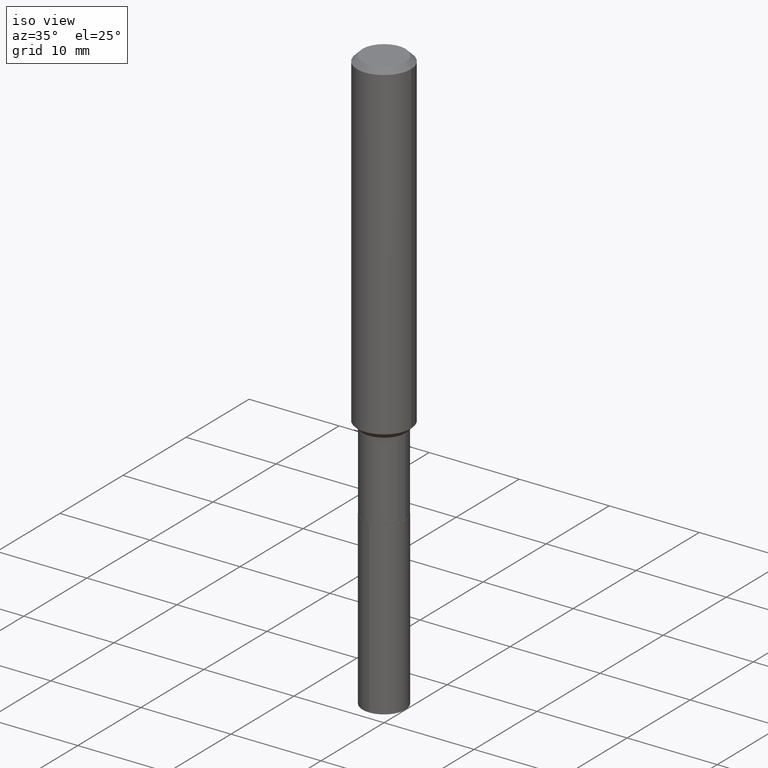
[diagram: clean part render]
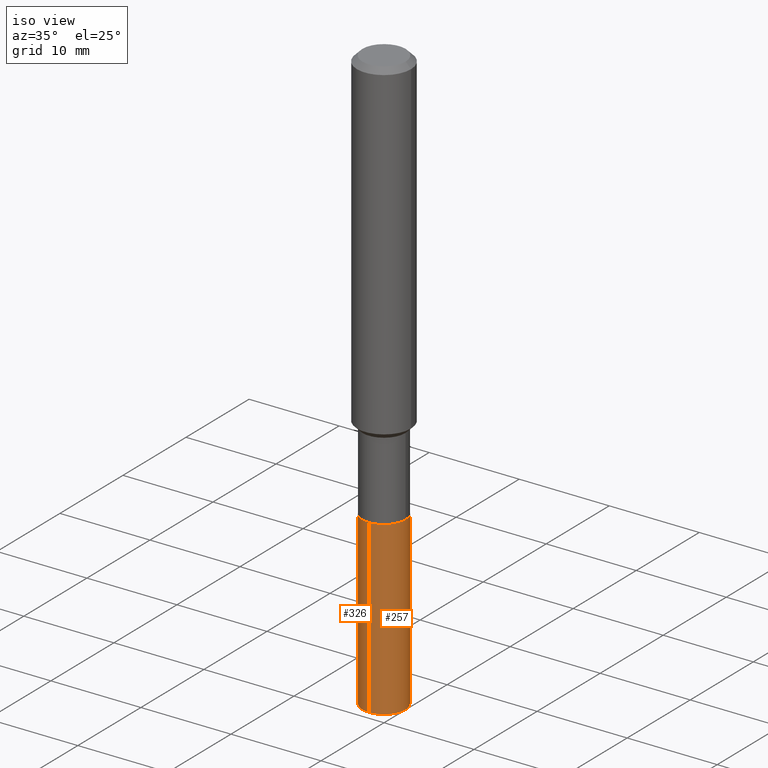
[diagram: same view with one multi-face feature highlighted, each face labeled with its STEP entity id]
A machine part, iso view. The highlighted faces form ONE feature: a constant-radius fillet chain: 2 tangent blend faces with common blend radius 2.3813 mm. The faces share edges in the B-rep.
Their STEP definitions:
[1] entity #326 (Cylinder):
#9 = AXIS2_PLACEMENT_3D ( 'NONE', #240, #272, #46 ) ;
#15 = LINE ( 'NONE', #98, #171 ) ;
#17 = CYLINDRICAL_SURFACE ( 'NONE', #235, 0.09375000000000001388 ) ;
#27 = DIRECTION ( 'NONE',  ( -6.982962677686265922E-15, -1.000000000000000000, 2.913971193241880372E-15 ) ) ;
#42 = CARTESIAN_POINT ( 'NONE',  ( 6.661338147751565401E-16, 0.09374999999999368561, -1.811000000000000165 ) ) ;
#46 = DIRECTION ( 'NONE',  ( -6.982962677686265922E-15, -1.000000000000000000, 5.827942386483760744E-15 ) ) ;
#52 = EDGE_LOOP ( 'NONE', ( #402, #144, #398, #354 ) ) ;
#73 = CARTESIAN_POINT ( 'NONE',  ( -6.546527510330432293E-16, -0.09375000000000632827, -1.810999999999999721 ) ) ;
#98 = CARTESIAN_POINT ( 'NONE',  ( -6.546527510330432293E-16, -0.09375000000000632827, -1.810999999999999721 ) ) ;
#103 = VERTEX_POINT ( 'NONE', #340 ) ;
#110 = CIRCLE ( 'NONE', #365, 0.09375000000000001388 ) ;
#119 = CIRCLE ( 'NONE', #9, 0.09375000000000001388 ) ;
#132 = CARTESIAN_POINT ( 'NONE',  ( 6.661338147751381005E-16, 0.09374999999999368561, -1.811000000000000165 ) ) ;
#135 = VERTEX_POINT ( 'NONE', #305 ) ;
#144 = ORIENTED_EDGE ( 'NONE', *, *, #443, .T. ) ;
#147 = CARTESIAN_POINT ( 'NONE',  ( 4.428744008001282238E-29, -6.323072704644935995E-15, -1.810999999999999943 ) ) ;
#171 = VECTOR ( 'NONE', #247, 39.37007874015748143 ) ;
#176 = EDGE_CURVE ( 'NONE', #103, #278, #15, .T. ) ;
#210 = LINE ( 'NONE', #132, #318 ) ;
#213 = DIRECTION ( 'NONE',  ( -2.445866323305288275E-29, 3.490912071701818882E-15, 1.000000000000000000 ) ) ;
#235 = AXIS2_PLACEMENT_3D ( 'NONE', #355, #357, #350 ) ;
#240 = CARTESIAN_POINT ( 'NONE',  ( 6.264295491593390154E-29, -8.942900604169135523E-15, -2.561470892911099195 ) ) ;
#247 = DIRECTION ( 'NONE',  ( -2.445866323305287994E-29, 3.490912071701818882E-15, 1.000000000000000000 ) ) ;
#272 = DIRECTION ( 'NONE',  ( -2.445866323305288275E-29, 3.490912071701818882E-15, 1.000000000000000000 ) ) ;
#278 = VERTEX_POINT ( 'NONE', #73 ) ;
#305 = CARTESIAN_POINT ( 'NONE',  ( 6.661338147751568359E-16, 0.09374999999999111822, -2.561470892911100083 ) ) ;
#313 = EDGE_CURVE ( 'NONE', #135, #325, #210, .T. ) ;
#317 = FACE_OUTER_BOUND ( 'NONE', #52, .T. ) ;
#318 = VECTOR ( 'NONE', #323, 39.37007874015748143 ) ;
#323 = DIRECTION ( 'NONE',  ( -2.445866323305287994E-29, 3.490912071701818882E-15, 1.000000000000000000 ) ) ;
#325 = VERTEX_POINT ( 'NONE', #42 ) ;
#326 = ADVANCED_FACE ( 'NONE', ( #317 ), #17, .T. ) ;
#340 = CARTESIAN_POINT ( 'NONE',  ( -6.546527510330251841E-16, -0.09375000000000899281, -2.561470892911098751 ) ) ;
#350 = DIRECTION ( 'NONE',  ( -6.982962677686265922E-15, -1.000000000000000000, 2.913971193241880372E-15 ) ) ;
#354 = ORIENTED_EDGE ( 'NONE', *, *, #490, .F. ) ;
#355 = CARTESIAN_POINT ( 'NONE',  ( 4.428744008001282238E-29, -6.323072704644935995E-15, -1.810999999999999943 ) ) ;
#357 = DIRECTION ( 'NONE',  ( -2.445866323305288275E-29, 3.490912071701818882E-15, 1.000000000000000000 ) ) ;
#365 = AXIS2_PLACEMENT_3D ( 'NONE', #147, #213, #27 ) ;
#398 = ORIENTED_EDGE ( 'NONE', *, *, #176, .T. ) ;
#402 = ORIENTED_EDGE ( 'NONE', *, *, #313, .F. ) ;
#443 = EDGE_CURVE ( 'NONE', #135, #103, #119, .T. ) ;
#490 = EDGE_CURVE ( 'NONE', #325, #278, #110, .T. ) ;
[2] entity #257 (Cylinder):
#2 = AXIS2_PLACEMENT_3D ( 'NONE', #55, #459, #127 ) ;
#15 = LINE ( 'NONE', #98, #171 ) ;
#42 = CARTESIAN_POINT ( 'NONE',  ( 6.661338147751565401E-16, 0.09374999999999368561, -1.811000000000000165 ) ) ;
#55 = CARTESIAN_POINT ( 'NONE',  ( 6.264295491593390154E-29, -8.942900604169135523E-15, -2.561470892911099195 ) ) ;
#56 = CARTESIAN_POINT ( 'NONE',  ( 4.428744008001282238E-29, -6.323072704644935995E-15, -1.810999999999999943 ) ) ;
#66 = EDGE_LOOP ( 'NONE', ( #173, #356, #133, #283 ) ) ;
#73 = CARTESIAN_POINT ( 'NONE',  ( -6.546527510330432293E-16, -0.09375000000000632827, -1.810999999999999721 ) ) ;
#92 = DIRECTION ( 'NONE',  ( -6.982962677686265922E-15, -1.000000000000000000, 2.913971193241880372E-15 ) ) ;
#98 = CARTESIAN_POINT ( 'NONE',  ( -6.546527510330432293E-16, -0.09375000000000632827, -1.810999999999999721 ) ) ;
#103 = VERTEX_POINT ( 'NONE', #340 ) ;
#127 = DIRECTION ( 'NONE',  ( -6.982962677686265922E-15, -1.000000000000000000, 5.827942386483760744E-15 ) ) ;
#132 = CARTESIAN_POINT ( 'NONE',  ( 6.661338147751381005E-16, 0.09374999999999368561, -1.811000000000000165 ) ) ;
#133 = ORIENTED_EDGE ( 'NONE', *, *, #164, .F. ) ;
#135 = VERTEX_POINT ( 'NONE', #305 ) ;
#138 = AXIS2_PLACEMENT_3D ( 'NONE', #56, #353, #92 ) ;
#148 = FACE_OUTER_BOUND ( 'NONE', #66, .T. ) ;
#164 = EDGE_CURVE ( 'NONE', #278, #325, #220, .T. ) ;
#171 = VECTOR ( 'NONE', #247, 39.37007874015748143 ) ;
#173 = ORIENTED_EDGE ( 'NONE', *, *, #431, .T. ) ;
#176 = EDGE_CURVE ( 'NONE', #103, #278, #15, .T. ) ;
#182 = DIRECTION ( 'NONE',  ( -6.982962677686265922E-15, -1.000000000000000000, 2.913971193241880372E-15 ) ) ;
#185 = CYLINDRICAL_SURFACE ( 'NONE', #258, 0.09375000000000001388 ) ;
#186 = CARTESIAN_POINT ( 'NONE',  ( 4.428744008001282238E-29, -6.323072704644935995E-15, -1.810999999999999943 ) ) ;
#204 = CIRCLE ( 'NONE', #2, 0.09375000000000001388 ) ;
#210 = LINE ( 'NONE', #132, #318 ) ;
#220 = CIRCLE ( 'NONE', #138, 0.09375000000000001388 ) ;
#247 = DIRECTION ( 'NONE',  ( -2.445866323305287994E-29, 3.490912071701818882E-15, 1.000000000000000000 ) ) ;
#257 = ADVANCED_FACE ( 'NONE', ( #148 ), #185, .T. ) ;
#258 = AXIS2_PLACEMENT_3D ( 'NONE', #186, #447, #182 ) ;
#278 = VERTEX_POINT ( 'NONE', #73 ) ;
#283 = ORIENTED_EDGE ( 'NONE', *, *, #176, .F. ) ;
#305 = CARTESIAN_POINT ( 'NONE',  ( 6.661338147751568359E-16, 0.09374999999999111822, -2.561470892911100083 ) ) ;
#313 = EDGE_CURVE ( 'NONE', #135, #325, #210, .T. ) ;
#318 = VECTOR ( 'NONE', #323, 39.37007874015748143 ) ;
#323 = DIRECTION ( 'NONE',  ( -2.445866323305287994E-29, 3.490912071701818882E-15, 1.000000000000000000 ) ) ;
#325 = VERTEX_POINT ( 'NONE', #42 ) ;
#340 = CARTESIAN_POINT ( 'NONE',  ( -6.546527510330251841E-16, -0.09375000000000899281, -2.561470892911098751 ) ) ;
#353 = DIRECTION ( 'NONE',  ( -2.445866323305288275E-29, 3.490912071701818882E-15, 1.000000000000000000 ) ) ;
#356 = ORIENTED_EDGE ( 'NONE', *, *, #313, .T. ) ;
#431 = EDGE_CURVE ( 'NONE', #103, #135, #204, .T. ) ;
#447 = DIRECTION ( 'NONE',  ( -2.445866323305288275E-29, 3.490912071701818882E-15, 1.000000000000000000 ) ) ;
#459 = DIRECTION ( 'NONE',  ( -2.445866323305288275E-29, 3.490912071701818882E-15, 1.000000000000000000 ) ) ;